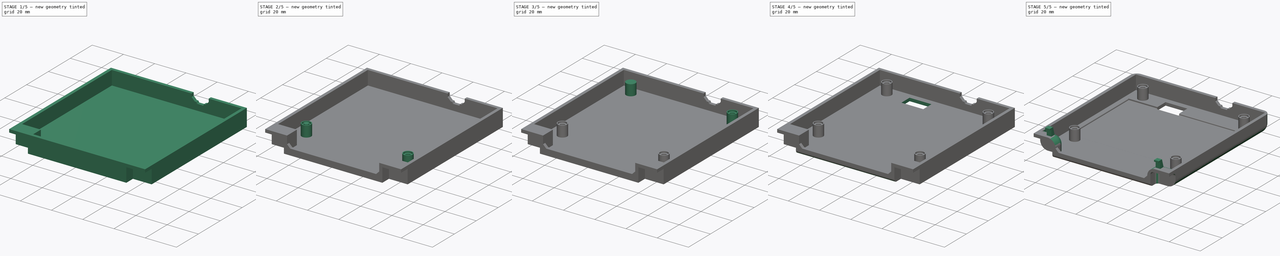
[diagram: build sequence overview — one tinted view per stage of 5, left to right]
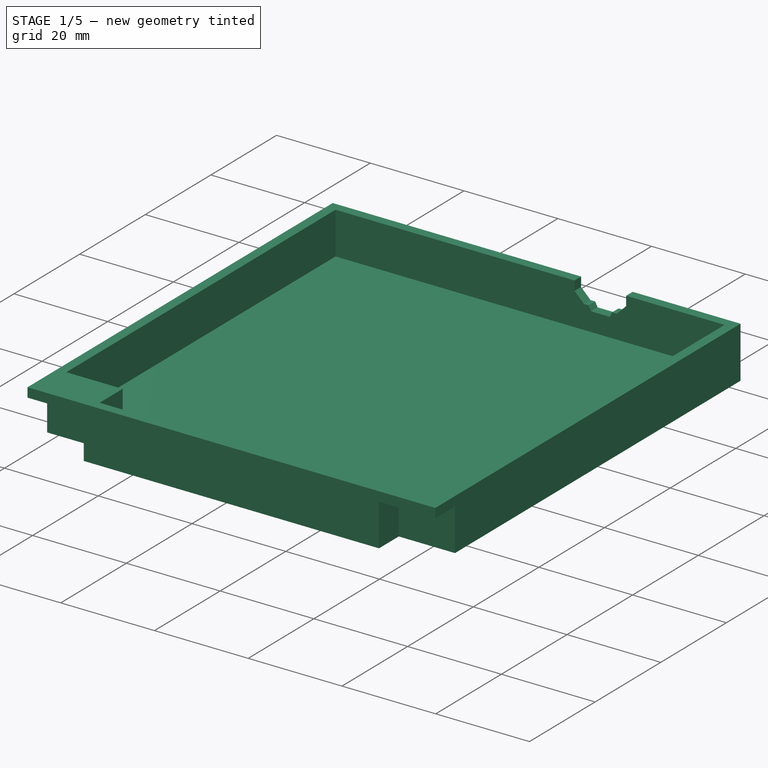
[diagram: stage 1 of 5 — iso view after this stage's code; geometry added in this stage tinted green]
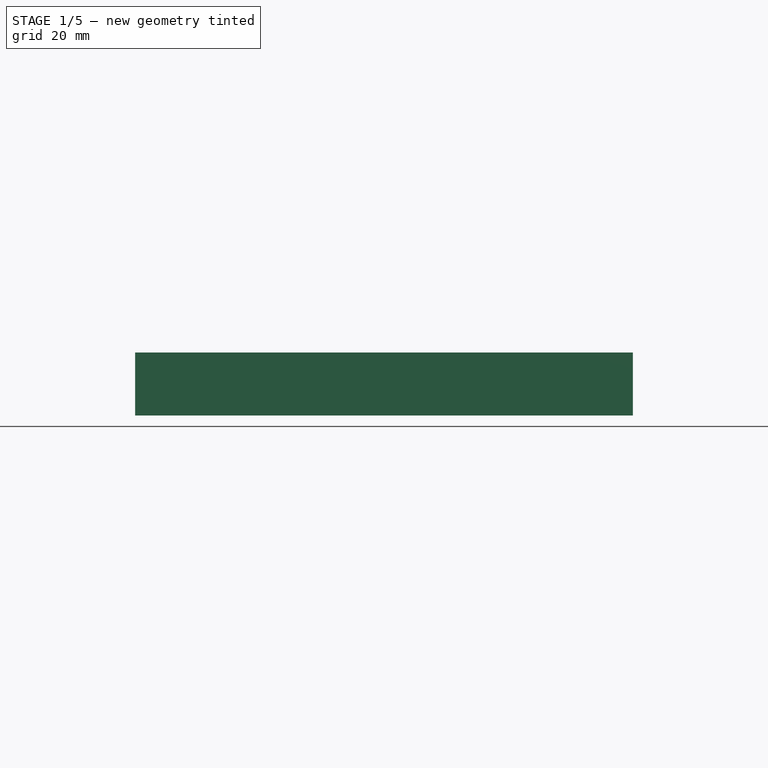
[diagram: stage 1 of 5 — front view after this stage's code; geometry added in this stage tinted green]
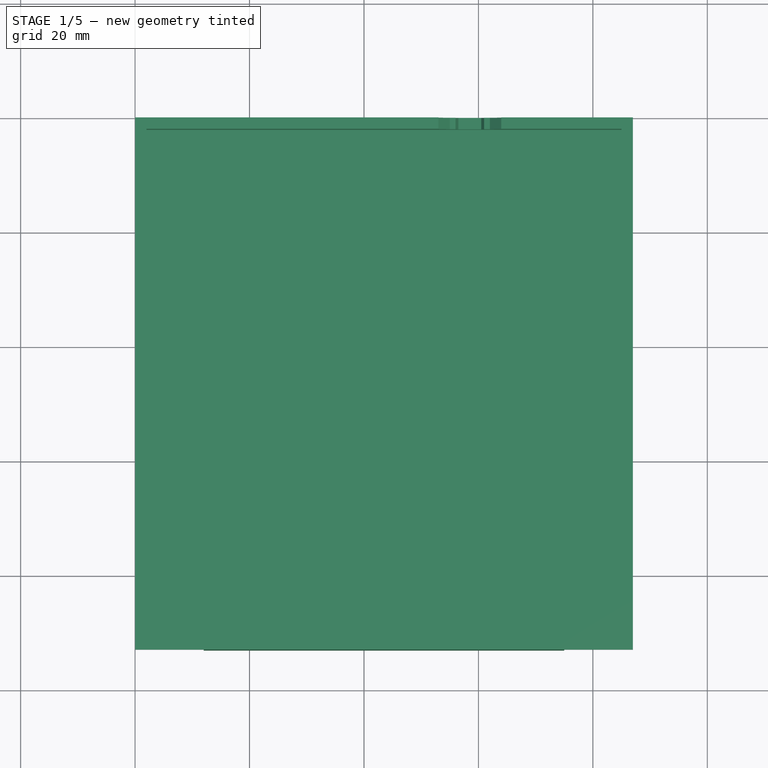
[diagram: stage 1 of 5 — top view after this stage's code; geometry added in this stage tinted green]
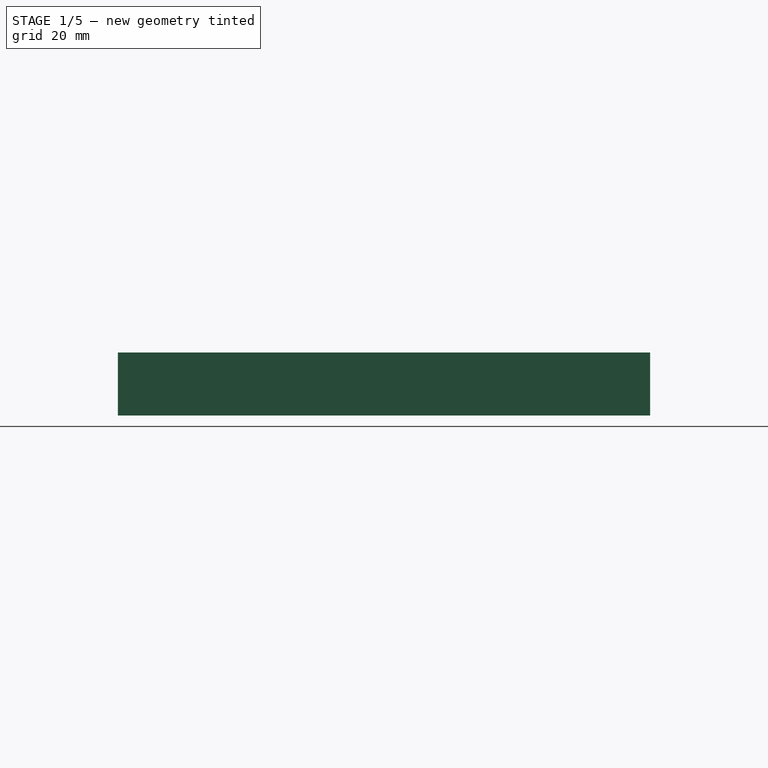
[diagram: stage 1 of 5 — right view after this stage's code; geometry added in this stage tinted green]
FCSTD DOCUMENT  (FreeCAD 0.21R33771 (Git))
Label: analoguepocket
License: All rights reserved
LicenseURL: http://en.wikipedia.org/wiki/All_rights_reserved
objects: Part::Feature×37, Part::Extrusion×31, Part::Cut×22, Part::Fillet×10, Sketcher::SketchObject×4, Part::MultiFuse×3, Part::Thickness×1
note: 108 computed .brp shape members not serialized (recipe doc carries the construction recipe); baked Part::Feature solids carry a one-line shape summary decoded from their .brp

FEATURE [Sketcher::SketchObject] Sketch
  FullyConstrained = false
  sketch-geometry (48):
    g0: LineSegment StartX=0 StartY=0 StartZ=0 EndX=87 EndY=0 EndZ=0
    g1: LineSegment StartX=87 StartY=0 StartZ=0 EndX=87 EndY=-93 EndZ=0
    g2: LineSegment StartX=87 StartY=-93 StartZ=0 EndX=0 EndY=-93 EndZ=0
    g3: LineSegment StartX=0 StartY=-93 StartZ=0 EndX=0 EndY=0 EndZ=0
    g4: Circle CenterX=11 CenterY=-8.5 CenterZ=0 NormalX=0 NormalY=0 NormalZ=1 AngleXU=0 Radius=1.5
    g5: Circle CenterX=11 CenterY=-8.5 CenterZ=0 NormalX=0 NormalY=0 NormalZ=1 AngleXU=0 Radius=2.5
    g6: Circle CenterX=11 CenterY=-8.5 CenterZ=0 NormalX=0 NormalY=0 NormalZ=1 AngleXU=0 Radius=3
    g7: LineSegment StartX=12 StartY=-93 StartZ=0 EndX=0 EndY=-93 EndZ=0
    g8: LineSegment StartX=0 StartY=-93 StartZ=0 EndX=0 EndY=-84 EndZ=0
    g9: LineSegment StartX=87 StartY=-93 StartZ=0 EndX=75 EndY=-93 EndZ=0
    g10: LineSegment StartX=87 StartY=-84 StartZ=0 EndX=87 EndY=-93 EndZ=0
    g11: Circle CenterX=76 CenterY=-71 CenterZ=0 NormalX=0 NormalY=0 NormalZ=1 AngleXU=0 Radius=1.5
    g12: Circle CenterX=76 CenterY=-71 CenterZ=0 NormalX=0 NormalY=0 NormalZ=1 AngleXU=0 Radius=2.5
    g13: Circle CenterX=76 CenterY=-71 CenterZ=0 NormalX=0 NormalY=0 NormalZ=1 AngleXU=0 Radius=3
    g14: Circle CenterX=76 CenterY=-8.5 CenterZ=0 NormalX=0 NormalY=0 NormalZ=1 AngleXU=0 Radius=1.5
    g15: Circle CenterX=76 CenterY=-8.5 CenterZ=0 NormalX=0 NormalY=0 NormalZ=1 AngleXU=0 Radius=2.5
    g16: Circle CenterX=76 CenterY=-8.5 CenterZ=0 NormalX=0 NormalY=0 NormalZ=1 AngleXU=0 Radius=3
    g17: Circle CenterX=11 CenterY=-71 CenterZ=0 NormalX=0 NormalY=0 NormalZ=1 AngleXU=0 Radius=1.5
    g18: Circle CenterX=11 CenterY=-71 CenterZ=0 NormalX=0 NormalY=0 NormalZ=1 AngleXU=0 Radius=2.5
    g19: Circle CenterX=11 CenterY=-71 CenterZ=0 NormalX=0 NormalY=0 NormalZ=1 AngleXU=0 Radius=3
    g20: LineSegment StartX=0 StartY=-93 StartZ=0 EndX=12 EndY=-93 EndZ=0
    g21: LineSegment StartX=12 StartY=-93 StartZ=0 EndX=12 EndY=-87 EndZ=0
    g22: LineSegment StartX=12 StartY=-87 StartZ=0 EndX=0 EndY=-87 EndZ=0
    g23: LineSegment StartX=0 StartY=-87 StartZ=0 EndX=0 EndY=-93 EndZ=0
    g24: LineSegment StartX=87 StartY=-93 StartZ=0 EndX=75 EndY=-93 EndZ=0
    g25: LineSegment StartX=75 StartY=-93 StartZ=0 EndX=75 EndY=-87 EndZ=0
    g26: LineSegment StartX=75 StartY=-87 StartZ=0 EndX=87 EndY=-87 EndZ=0
    g27: LineSegment StartX=87 StartY=-87 StartZ=0 EndX=87 EndY=-93 EndZ=0
    g28: LineSegment StartX=0 StartY=-84 StartZ=0 EndX=14 EndY=-84 EndZ=0
    g29: LineSegment StartX=14 StartY=-84 StartZ=0 EndX=14 EndY=-93 EndZ=0
    g30: LineSegment StartX=87 StartY=-84 StartZ=0 EndX=73 EndY=-84 EndZ=0
    g31: LineSegment StartX=73 StartY=-84 StartZ=0 EndX=73 EndY=-93 EndZ=0
    g32: LineSegment StartX=23.5 StartY=-13 StartZ=0 EndX=37.5 EndY=-13 EndZ=0
    g33: LineSegment StartX=37.5 StartY=-13 StartZ=0 EndX=37.5 EndY=-5 EndZ=0
    g34: LineSegment StartX=37.5 StartY=-5 StartZ=0 EndX=23.5 EndY=-5 EndZ=0
    g35: LineSegment StartX=23.5 StartY=-5 StartZ=0 EndX=23.5 EndY=-13 EndZ=0
    g36: LineSegment StartX=77 StartY=-88 StartZ=0 EndX=80 EndY=-88 EndZ=0
    g37: LineSegment StartX=80 StartY=-88 StartZ=0 EndX=80 EndY=-91 EndZ=0
    g38: LineSegment StartX=80 StartY=-91 StartZ=0 EndX=77 EndY=-91 EndZ=0
    g39: LineSegment StartX=77 StartY=-91 StartZ=0 EndX=77 EndY=-88 EndZ=0
    g40: LineSegment StartX=7 StartY=-88 StartZ=0 EndX=10 EndY=-88 EndZ=0
    g41: LineSegment StartX=10 StartY=-88 StartZ=0 EndX=10 EndY=-91 EndZ=0
    g42: LineSegment StartX=10 StartY=-91 StartZ=0 EndX=7 EndY=-91 EndZ=0
    g43: LineSegment StartX=7 StartY=-91 StartZ=0 EndX=7 EndY=-88 EndZ=0
    g44: LineSegment StartX=5 StartY=-13 StartZ=0 EndX=82 EndY=-13 EndZ=0
    g45: LineSegment StartX=82 StartY=-13 StartZ=0 EndX=82 EndY=-67 EndZ=0
    g46: LineSegment StartX=82 StartY=-67 StartZ=0 EndX=5 EndY=-67 EndZ=0
    g47: LineSegment StartX=5 StartY=-67 StartZ=0 EndX=5 EndY=-13 EndZ=0
  constraints (132):
    c: Coincident(g0,g1)
    c: Coincident(g1,g2)
    c: Coincident(g2,g3)
    c: Coincident(g3,g0)
    c: Horizontal(g0)
    c: Horizontal(g2)
    c: Vertical(g1)
    c: Vertical(g3)
    c: Coincident(g-1,g0)
    c: Distance(g0) = 87
    c: Distance(g3) = 93
    c: Diameter(g4) = 3
    c: Distance(g4,g0) = 8.5
    c: Distance(g4,g3) = 11
    c: Coincident(g5,g4)
    c: Diameter(g5) = 5
    c: Coincident(g6,g4)
    c: Diameter(g6) = 6
    c: Coincident(g7,g8)
    c: Horizontal(g7)
    c: Vertical(g8)
    c: PointOnObject(g8,g3)
    c: PointOnObject(g7,g2)
    c: Distance(g8) = 9
    c: Coincident(g10,g9)
    c: Horizontal(g9)
    c: Vertical(g10)
    c: Coincident(g9,g1)
    c: Diameter(g11) = 3
    c: Distance(g11,g1) = 11
    c: Distance(g11,g2) = 22
    c: Coincident(g12,g11)
    c: Diameter(g12) = 5
    c: Coincident(g13,g11)
    c: Diameter(g13) = 6
    c: Diameter(g14) = 3
    c: Distance(g14,g1) = 11
    c: Distance(g14,g0) = 8.5
    c: Coincident(g15,g14)
    c: Diameter(g15) = 5
    c: Coincident(g16,g14)
    c: Diameter(g16) = 6
    c: Diameter(g17) = 3
    c: Distance(g17,g3) = 11
    c: Distance(g17,g2) = 22
    c: Coincident(g18,g17)
    c: Diameter(g18) = 5
    c: Coincident(g19,g17)
    c: Diameter(g19) = 6
    c: Coincident(g20,g21)
    c: Coincident(g21,g22)
    c: Coincident(g22,g23)
    c: Coincident(g23,g20)
    c: Horizontal(g20)
    c: Horizontal(g22)
    c: Vertical(g21)
    c: Vertical(g23)
    c: Coincident(g20,g2)
    c: Distance(g23) = 6
    c: Coincident(g24,g25)
    c: Coincident(g25,g26)
    c: Coincident(g26,g27)
    c: Coincident(g27,g24)
    c: Horizontal(g24)
    c: Horizontal(g26)
    c: Vertical(g25)
    c: Vertical(g27)
    c: Coincident(g24,g1)
    c: Distance(g26) = 12
    c: Distance(g25) = 6
    c: Distance(g10,g1) = 9
    c: Coincident(g28,g8)
    c: Horizontal(g28)
    c: Distance(g28) = 14
    c: Distance(g21,g22) = 12
    c: Coincident(g29,g28)
    c: PointOnObject(g29,g2)
    c: Vertical(g29)
    c: Coincident(g30,g10)
    c: Horizontal(g30)
    c: Distance(g30) = 14
    c: Coincident(g31,g30)
    c: PointOnObject(g31,g2)
    c: Vertical(g31)
    c: Coincident(g32,g33)
    c: Coincident(g33,g34)
    c: Coincident(g34,g35)
    c: Coincident(g35,g32)
    c: Horizontal(g32)
    c: Horizontal(g34)
    c: Vertical(g33)
    c: Vertical(g35)
    c: Distance(g32) = 14
    c: Distance(g35) = 8
    c: Coincident(g36,g37)
    c: Coincident(g37,g38)
    c: Coincident(g38,g39)
    c: Coincident(g39,g36)
    c: Horizontal(g36)
    c: Horizontal(g38)
    c: Vertical(g37)
    c: Vertical(g39)
    c: Distance(g36) = 3
    c: Distance(g39) = 3
    c: Distance(g37,g2) = 2
    c: Distance(g36,g1) = 7
    c: Coincident(g40,g41)
    c: Coincident(g41,g42)
    c: Coincident(g42,g43)
    c: Coincident(g43,g40)
    c: Horizontal(g40)
    c: Horizontal(g42)
    c: Vertical(g41)
    c: Vertical(g43)
    c: Distance(g40) = 3
    c: Distance(g43) = 3
    c: Distance(g42,g2) = 2
    c: Distance(g42,g3) = 7
    c: Distance(g32,g3) = 23.5
    c: Distance(g34,g2) = 88
    c: Coincident(g44,g45)
    c: Coincident(g45,g46)
    c: Coincident(g46,g47)
    c: Coincident(g47,g44)
    c: Horizontal(g44)
    c: Horizontal(g46)
    c: Vertical(g45)
    c: Vertical(g47)
    c: Distance(g45) = 54
    c: Distance(g44,g0) = 13
    c: Distance(g44,g3) = 5
    c: Distance(g44,g1) = 5
FEATURE [Sketcher::SketchObject] Sketch001
  FullyConstrained = true
  Placement = pos=(0,-93,0) rot=(1,0,0;1.5708rad)
  sketch-geometry (10):
    g0: LineSegment StartX=73 StartY=11 StartZ=0 EndX=14 EndY=11 EndZ=0
    g1: LineSegment StartX=87 StartY=11 StartZ=0 EndX=0 EndY=11 EndZ=0
    g2: LineSegment StartX=0 StartY=11 StartZ=0 EndX=0 EndY=0 EndZ=0
    g3: LineSegment StartX=0 StartY=0 StartZ=0 EndX=87 EndY=0 EndZ=0
    g4: LineSegment StartX=87 StartY=0 StartZ=0 EndX=87 EndY=11 EndZ=0
    g5: LineSegment StartX=16 StartY=3.99996 StartZ=0 EndX=14 EndY=5.99996 EndZ=0
    g6: LineSegment StartX=73 StartY=5.99996 StartZ=0 EndX=71 EndY=3.99996 EndZ=0
    g7: LineSegment StartX=14 StartY=5.99996 StartZ=0 EndX=14 EndY=11 EndZ=0
    g8: LineSegment StartX=16 StartY=3.99996 StartZ=0 EndX=71 EndY=3.99996 EndZ=0
    g9: LineSegment StartX=73 StartY=5.99996 StartZ=0 EndX=73 EndY=11 EndZ=0
  constraints (29):
    c: Horizontal(g0)
    c: Distance(g0) = 59
    c: Coincident(g1,g2)
    c: Coincident(g2,g3)
    c: Coincident(g3,g4)
    c: Coincident(g4,g1)
    c: Horizontal(g1)
    c: Horizontal(g3)
    c: Vertical(g2)
    c: Vertical(g4)
    c: Coincident(g2,g-1)
    c: Distance(g2) = 11
    c: Distance(g1) = 87
    c: Distance(g0,g1) = 14
    c: Distance(g0,g1) = 14
    c: Coincident(g7,g5)
    c: Coincident(g7,g0)
    c: Vertical(g7)
    c: Coincident(g8,g5)
    c: Coincident(g8,g6)
    c: Horizontal(g8)
    c: Coincident(g9,g6)
    c: Coincident(g9,g0)
    c: Vertical(g9)
    c: Angle(g5,g7) = 2.35619
    c: Distance(g5,g0) = 5
    c: Distance(g5,g0) = 7
    c: Distance(g6,g0) = 5
    c: Angle(g6) = -2.35619
FEATURE [Sketcher::SketchObject] Sketch002
  FullyConstrained = true
  Placement = pos=(0,0,0) rot=(1,0,0;1.5708rad)
  sketch-geometry (12):
    g0: LineSegment StartX=53 StartY=11 StartZ=0 EndX=64 EndY=11 EndZ=0
    g1: LineSegment StartX=0 StartY=0 StartZ=0 EndX=87 EndY=0 EndZ=0
    g2: LineSegment StartX=87 StartY=0 StartZ=0 EndX=87 EndY=11 EndZ=0
    g3: LineSegment StartX=64 StartY=11 StartZ=0 EndX=64 EndY=9 EndZ=0
    g4: LineSegment StartX=53 StartY=11 StartZ=0 EndX=53 EndY=9 EndZ=0
    g5: LineSegment StartX=55 StartY=7 StartZ=0 EndX=56 EndY=7 EndZ=0
    g6: LineSegment StartX=62 StartY=7 StartZ=0 EndX=61 EndY=7 EndZ=0
    g7: LineSegment StartX=56.5 StartY=6 StartZ=0 EndX=60.5 EndY=6 EndZ=0
    g8: LineSegment StartX=62 StartY=7 StartZ=0 EndX=64 EndY=9 EndZ=0
    g9: LineSegment StartX=60.5 StartY=6 StartZ=0 EndX=61 EndY=7 EndZ=0
    g10: LineSegment StartX=56.5 StartY=6 StartZ=0 EndX=56 EndY=7 EndZ=0
    g11: LineSegment StartX=55 StartY=7 StartZ=0 EndX=53 EndY=9 EndZ=0
  constraints (36):
    c: Coincident(g1,g-1)
    c: PointOnObject(g1,g-1)
    c: Coincident(g2,g1)
    c: Vertical(g2)
    c: Distance(g0) = 11
    c: Distance(g0,g2) = 23
    c: Distance(g0,g1) = 11
    c: Distance(g0,g1) = 11
    c: Distance(g1) = 87
    c: Coincident(g3,g0)
    c: Vertical(g3)
    c: Coincident(g4,g0)
    c: Vertical(g4)
    c: Distance(g4) = 2
    c: Distance(g3) = 2
    c: Horizontal(g5)
    c: Distance(g5) = 1
    c: Distance(g5,g0) = 4
    c: Horizontal(g6)
    c: Distance(g6) = 1
    c: Distance(g6,g0) = 4
    c: Horizontal(g7)
    c: Distance(g7) = 4
    c: Distance(g7,g1) = 6
    c: Distance(g2) = 11
    c: Coincident(g8,g6)
    c: Coincident(g8,g3)
    c: Coincident(g9,g7)
    c: Coincident(g9,g6)
    c: Coincident(g10,g7)
    c: Coincident(g10,g5)
    c: Coincident(g11,g5)
    c: Coincident(g11,g4)
    c: Distance(g7,g2) = 26.5
    c: Distance(g6,g2) = 25
    c: DistanceX(g-2,g5) = 55
FEATURE [Part::Feature] Face002
  shape: bbox 12.1 x 2e-07 x 5.5 mm, 1 faces, 0 solids (baked)
FEATURE [Part::Extrusion] Extrude002
  Base = -> Face002
  Dir = (0,-1,0)
  DirMode = 0
  FaceMakerClass = Part::FaceMakerBullseye
  LengthFwd = 2
  LengthRev = 0
  Solid = false
  Symmetric = false
FEATURE [Sketcher::SketchObject] Sketch003
  FullyConstrained = true
  MapMode = 4
  Placement = pos=(0,0,0) rot=(0.57735,0.57735,0.57735;2.0944rad)
  sketch-geometry (8):
    g0: LineSegment StartX=0 StartY=0 StartZ=0 EndX=0 EndY=11 EndZ=0
    g1: LineSegment StartX=0 StartY=0 StartZ=0 EndX=-93 EndY=0 EndZ=0
    g2: LineSegment StartX=-91 StartY=11 StartZ=0 EndX=-88 EndY=11 EndZ=0
    g3: LineSegment StartX=-91 StartY=11 StartZ=0 EndX=-91 EndY=15 EndZ=0
    g4: LineSegment StartX=-91 StartY=15 StartZ=0 EndX=-92.5 EndY=15 EndZ=0
    g5: LineSegment StartX=-92.5 StartY=15 StartZ=0 EndX=-92.5 EndY=16 EndZ=0
    g6: LineSegment StartX=-92.5 StartY=16 StartZ=0 EndX=-89.5 EndY=16 EndZ=0
    g7: LineSegment StartX=-89.5 StartY=16 StartZ=0 EndX=-88 EndY=11 EndZ=0
  constraints (24):
    c: Coincident(g0,g-1)
    c: PointOnObject(g0,g-2)
    c: Distance(g0) = 11
    c: Coincident(g1,g0)
    c: PointOnObject(g1,g-1)
    c: Distance(g1) = 93
    c: Horizontal(g2)
    c: Distance(g2,g1) = 11
    c: DistanceX(g-2,g2) = -88
    c: DistanceX(g-2,g2) = -91
    c: Coincident(g3,g2)
    c: Vertical(g3)
    c: Distance(g3) = 4
    c: Coincident(g4,g3)
    c: Horizontal(g4)
    c: Distance(g4) = 1.5
    c: Coincident(g5,g4)
    c: Vertical(g5)
    c: Distance(g5) = 1
    c: Coincident(g6,g5)
    c: Horizontal(g6)
    c: Distance(g6) = 3
    c: Coincident(g7,g6)
    c: Coincident(g7,g2)
FEATURE [Part::Feature] Face
  shape: bbox 95.7 x 102.3 x 2e-07 mm, 1 faces, 0 solids (baked)
FEATURE [Part::Extrusion] Extrude
  Base = -> Face
  Dir = (0,0,1)
  DirMode = 0
  FaceMakerClass = Part::FaceMakerBullseye
  LengthFwd = 11
  LengthRev = 0
  Solid = false
  Symmetric = false
FEATURE [Part::Thickness] Thickness
  Faces = -> Extrude [Face6]
  Intersection = false
  Join = 0
  Mode = 0
  SelfIntersection = false
  Value = -2
FEATURE [Part::Feature] Face053
  shape: bbox 15.4 x 9.9 x 2e-07 mm, 1 faces, 0 solids (baked)
FEATURE [Part::Feature] Face054
  shape: bbox 15.4 x 9.9 x 2e-07 mm, 1 faces, 0 solids (baked)
FEATURE [Part::Extrusion] Extrude056
  Base = -> Face053
  Dir = (0,0,1)
  DirMode = 0
  FaceMakerClass = Part::FaceMakerBullseye
  LengthFwd = 11
  LengthRev = 0
  Solid = false
  Symmetric = false
FEATURE [Part::Extrusion] Extrude057
  Base = -> Face054
  Dir = (0,0,1)
  DirMode = 0
  FaceMakerClass = Part::FaceMakerBullseye
  LengthFwd = 11
  LengthRev = 0
  Solid = false
  Symmetric = false
FEATURE [Part::MultiFuse] Fusion
  Shapes = -> [Thickness,Extrude056,Extrude057]
FEATURE [Part::Feature] Face055
  shape: bbox 13.2 x 6.6 x 2e-07 mm, 1 faces, 0 solids (baked)
FEATURE [Part::Feature] Face056
  shape: bbox 13.2 x 6.6 x 2e-07 mm, 1 faces, 0 solids (baked)
FEATURE [Part::Extrusion] Extrude058
  Base = -> Face055
  Dir = (0,0,1)
  DirMode = 0
  FaceMakerClass = Part::FaceMakerBullseye
  LengthFwd = 9
  LengthRev = 0
  Solid = false
  Symmetric = false
FEATURE [Part::Extrusion] Extrude059
  Base = -> Face056
  Dir = (0,0,1)
  DirMode = 0
  FaceMakerClass = Part::FaceMakerBullseye
  LengthFwd = 9
  LengthRev = 0
  Solid = false
  Symmetric = false
FEATURE [Part::Cut] Cut
  Base = -> Fusion
  Tool = -> Extrude058
FEATURE [Part::Cut] Cut038
  Base = -> Cut
  Tool = -> Extrude059
FEATURE [Part::Cut] Cut039
  Base = -> Cut038
  Tool = -> Extrude002
FEATURE [Part::Feature] Face057
  shape: bbox 64.9 x 2e-07 x 7.7 mm, 1 faces, 0 solids (baked)
FEATURE [Part::Extrusion] Extrude060
  Base = -> Face057
  Dir = (0,1,0)
  DirMode = 0
  FaceMakerClass = Part::FaceMakerBullseye
  LengthFwd = 2
  LengthRev = 0
  Solid = false
  Symmetric = false
FEATURE [Part::Feature] Face060
  Placement = pos=(0,0,1) rot=(0,0,1;0rad)
  shape: bbox 84.7 x 59.4 x 2e-07 mm, 1 faces, 0 solids (baked)
FEATURE [Part::Extrusion] Extrude063
  Base = -> Face060
  Dir = (0,0,1)
  DirMode = 0
  FaceMakerClass = Part::FaceMakerBullseye
  LengthFwd = 1
  LengthRev = 0
  Solid = false
  Symmetric = false
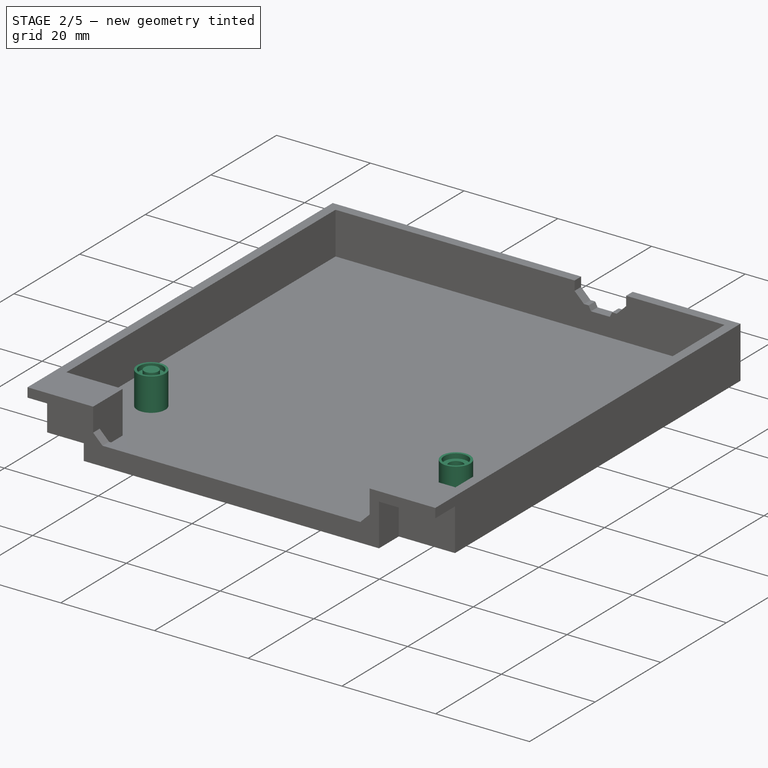
[diagram: stage 2 of 5 — iso view after this stage's code; geometry added in this stage tinted green]
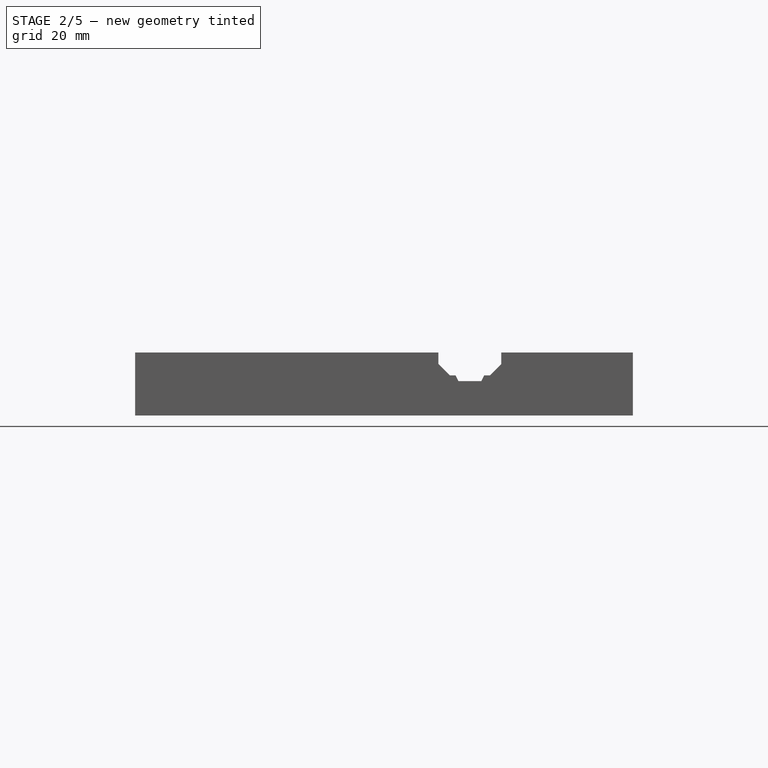
[diagram: stage 2 of 5 — front view after this stage's code; geometry added in this stage tinted green]
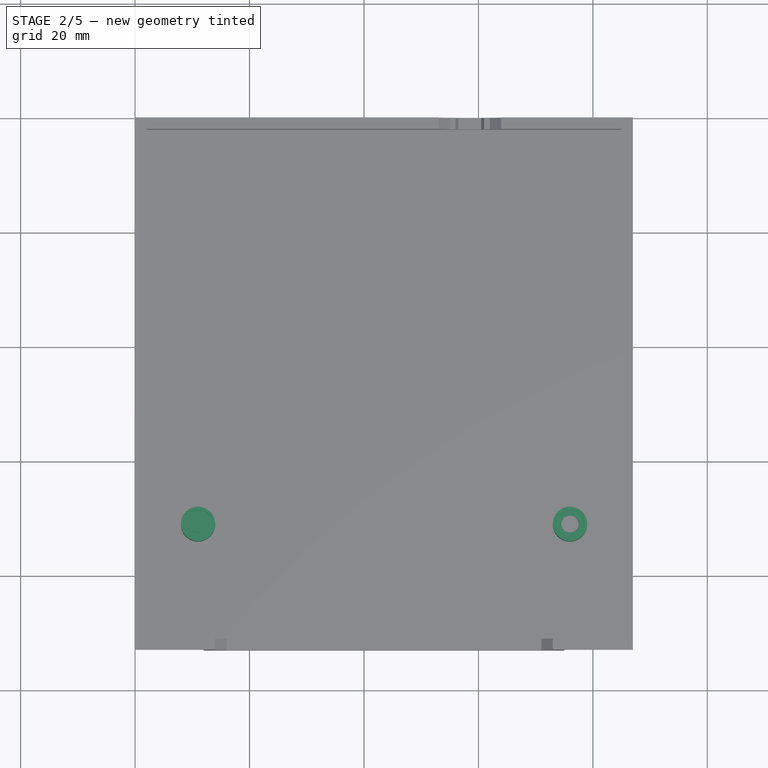
[diagram: stage 2 of 5 — top view after this stage's code; geometry added in this stage tinted green]
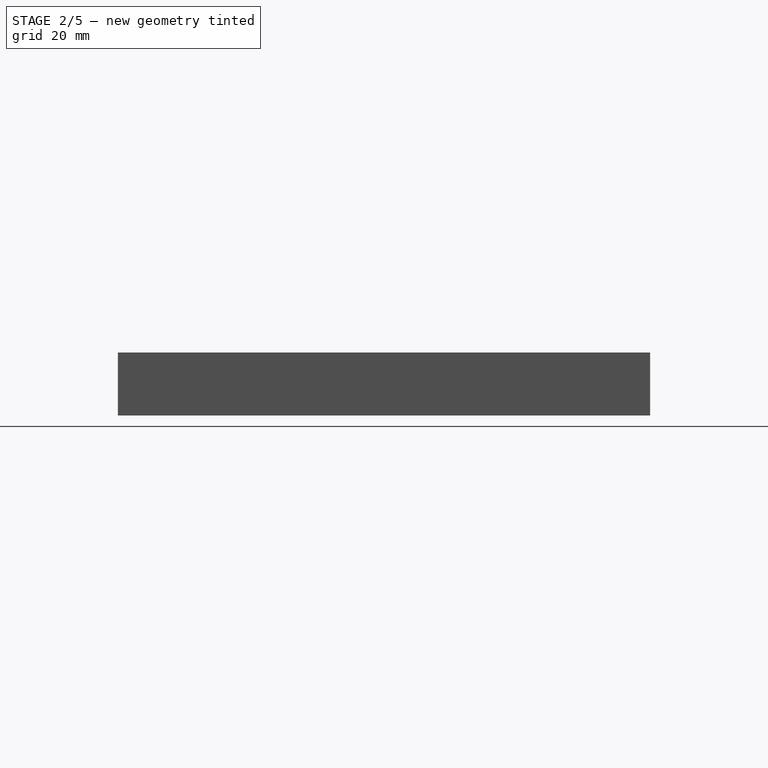
[diagram: stage 2 of 5 — right view after this stage's code; geometry added in this stage tinted green]
FEATURE [Part::Extrusion] Extrude040
  Base = -> Face037
  Dir = (0,0,1)
  DirMode = 0
  FaceMakerClass = Part::FaceMakerBullseye
  LengthFwd = 9
  LengthRev = 0
  Solid = false
  Symmetric = false
FEATURE [Part::Extrusion] Extrude041
  Base = -> Face038
  Dir = (0,0,1)
  DirMode = 0
  FaceMakerClass = Part::FaceMakerBullseye
  LengthFwd = 9
  LengthRev = 0
  Solid = false
  Symmetric = false
FEATURE [Part::Extrusion] Extrude044
  Base = -> Face039
  Dir = (0,0,1)
  DirMode = 0
  FaceMakerClass = Part::FaceMakerBullseye
  LengthFwd = 6.5
  LengthRev = 0
  Solid = false
  Symmetric = false
FEATURE [Part::Extrusion] Extrude045
  Base = -> Face040
  Dir = (0,0,1)
  DirMode = 0
  FaceMakerClass = Part::FaceMakerBullseye
  LengthFwd = 6.5
  LengthRev = 0
  Solid = false
  Symmetric = false
FEATURE [Part::Cut] Cut028
  Base = -> Extrude040
  Tool = -> Extrude044
FEATURE [Part::Cut] Cut029
  Base = -> Extrude041
  Tool = -> Extrude045
FEATURE [Part::Feature] Face041
  Placement = pos=(0,0,8) rot=(0,0,1;0rad)
  shape: bbox 6.379 x 6.28 x 2e-07 mm, 1 faces, 0 solids (baked)
FEATURE [Part::Feature] Face042
  Placement = pos=(0,0,8) rot=(0,0,1;0rad)
  shape: bbox 5.878 x 5.584 x 2e-07 mm, 1 faces, 0 solids (baked)
FEATURE [Part::Feature] Face043
  Placement = pos=(0,0,8) rot=(0,0,1;0rad)
  shape: bbox 6.926 x 6.921 x 2e-07 mm, 1 faces, 0 solids (baked)
FEATURE [Part::Feature] Face044
  Placement = pos=(0,0,8) rot=(0,0,1;0rad)
  shape: bbox 6.466 x 6.4 x 2e-07 mm, 1 faces, 0 solids (baked)
FEATURE [Part::Extrusion] Extrude046
  Base = -> Face041
  Dir = (0,0,1)
  DirMode = 0
  FaceMakerClass = Part::FaceMakerBullseye
  LengthFwd = 1
  LengthRev = 0
  Solid = false
  Symmetric = false
FEATURE [Part::Extrusion] Extrude047
  Base = -> Face042
  Dir = (0,0,1)
  DirMode = 0
  FaceMakerClass = Part::FaceMakerBullseye
  LengthFwd = 1
  LengthRev = 0
  Solid = false
  Symmetric = false
FEATURE [Part::Cut] Cut032
  Base = -> Cut028
  Tool = -> Extrude046
FEATURE [Part::Cut] Cut033
  Base = -> Cut029
  Tool = -> Extrude047
FEATURE [Part::Feature] Face045
  shape: bbox 3.498 x 3.302 x 2e-07 mm, 1 faces, 0 solids (baked)
FEATURE [Part::Feature] Face046
  shape: bbox 3.471 x 3.252 x 2e-07 mm, 1 faces, 0 solids (baked)
FEATURE [Part::Feature] Face047
  shape: bbox 4.657 x 4.659 x 2e-07 mm, 1 faces, 0 solids (baked)
FEATURE [Part::Feature] Face048
  shape: bbox 3.897 x 3.856 x 2e-07 mm, 1 faces, 0 solids (baked)
FEATURE [Part::Extrusion] Extrude050
  Base = -> Face045
  Dir = (0,0,1)
  DirMode = 0
  FaceMakerClass = Part::FaceMakerBullseye
  LengthFwd = 9
  LengthRev = 0
  Solid = false
  Symmetric = false
FEATURE [Part::Extrusion] Extrude051
  Base = -> Face046
  Dir = (0,0,1)
  DirMode = 0
  FaceMakerClass = Part::FaceMakerBullseye
  LengthFwd = 9
  LengthRev = 0
  Solid = false
  Symmetric = false
FEATURE [Part::Cut] Cut037
  Base = -> Cut033
  Tool = -> Extrude051
FEATURE [Part::Cut] Cut040
  Base = -> Cut039
  Tool = -> Extrude060
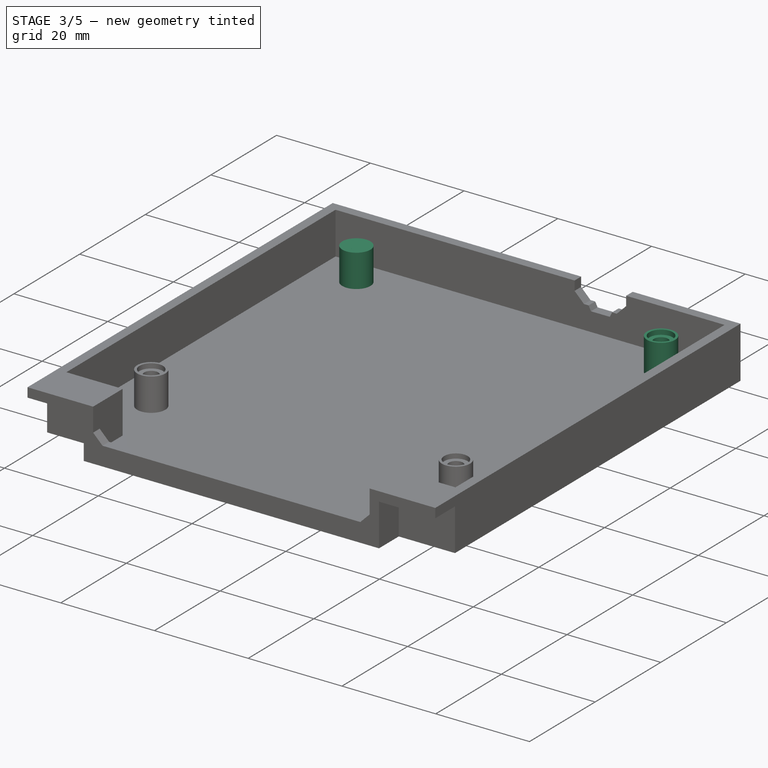
[diagram: stage 3 of 5 — iso view after this stage's code; geometry added in this stage tinted green]
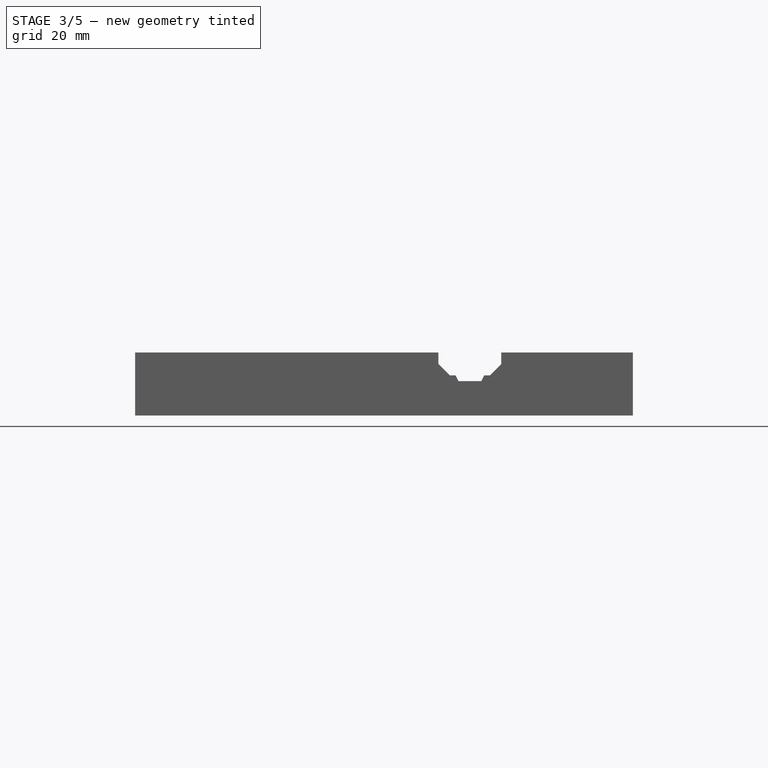
[diagram: stage 3 of 5 — front view after this stage's code; geometry added in this stage tinted green]
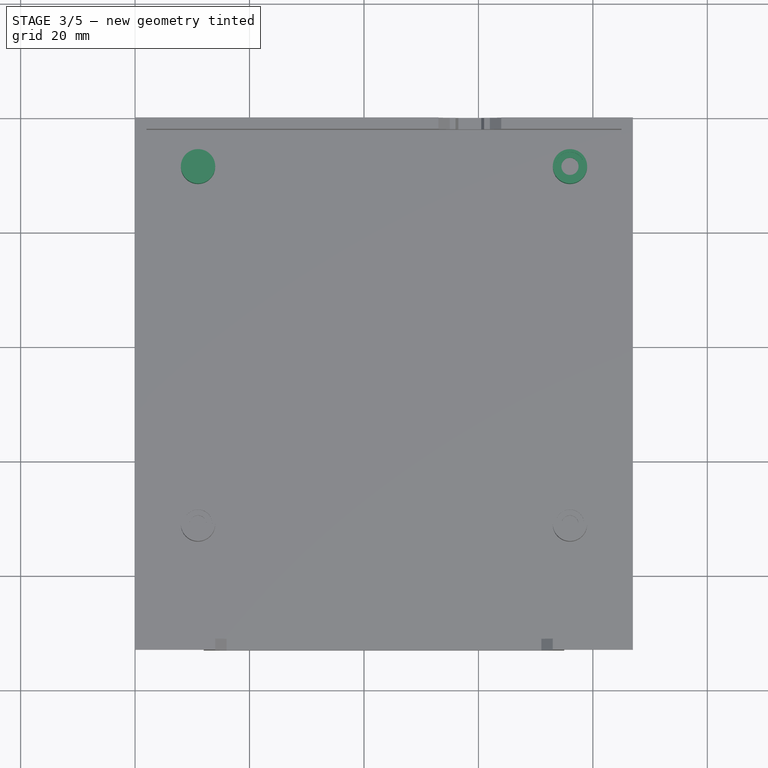
[diagram: stage 3 of 5 — top view after this stage's code; geometry added in this stage tinted green]
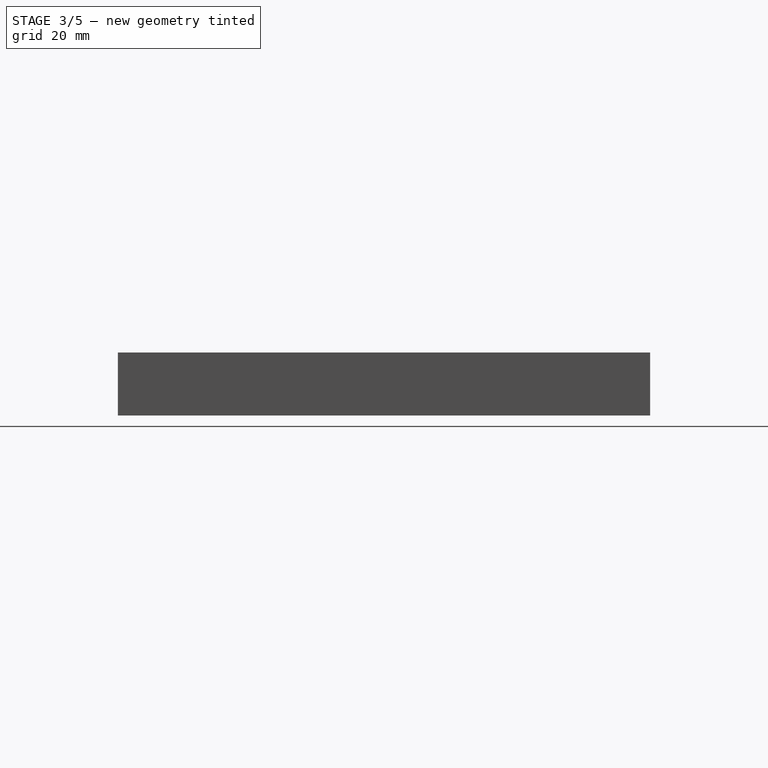
[diagram: stage 3 of 5 — right view after this stage's code; geometry added in this stage tinted green]
FEATURE [Part::Feature] Face037
  shape: bbox 8.834 x 8.842 x 2e-07 mm, 1 faces, 0 solids (baked)
FEATURE [Part::Feature] Face038
  shape: bbox 7.336 x 7.08 x 2e-07 mm, 1 faces, 0 solids (baked)
FEATURE [Part::Extrusion] Extrude038
  Base = -> Face005
  Dir = (0,0,1)
  DirMode = 0
  FaceMakerClass = Part::FaceMakerBullseye
  LengthFwd = 9
  LengthRev = 0
  Solid = false
  Symmetric = false
FEATURE [Part::Extrusion] Extrude039
  Base = -> Face006
  Dir = (0,0,1)
  DirMode = 0
  FaceMakerClass = Part::FaceMakerBullseye
  LengthFwd = 9
  LengthRev = 0
  Solid = false
  Symmetric = false
FEATURE [Part::Feature] Face039
  shape: bbox 6.379 x 6.28 x 2e-07 mm, 1 faces, 0 solids (baked)
FEATURE [Part::Feature] Face040
  shape: bbox 5.878 x 5.584 x 2e-07 mm, 1 faces, 0 solids (baked)
FEATURE [Part::Extrusion] Extrude042
  Base = -> Face009
  Dir = (0,0,1)
  DirMode = 0
  FaceMakerClass = Part::FaceMakerBullseye
  LengthFwd = 6.5
  LengthRev = 0
  Solid = false
  Symmetric = false
FEATURE [Part::Extrusion] Extrude043
  Base = -> Face010
  Dir = (0,0,1)
  DirMode = 0
  FaceMakerClass = Part::FaceMakerBullseye
  LengthFwd = 6.5
  LengthRev = 0
  Solid = false
  Symmetric = false
FEATURE [Part::Cut] Cut026
  Base = -> Extrude038
  Tool = -> Extrude042
FEATURE [Part::Cut] Cut027
  Base = -> Extrude039
  Tool = -> Extrude043
FEATURE [Part::Extrusion] Extrude048
  Base = -> Face043
  Dir = (0,0,1)
  DirMode = 0
  FaceMakerClass = Part::FaceMakerBullseye
  LengthFwd = 1
  LengthRev = 0
  Solid = false
  Symmetric = false
FEATURE [Part::Extrusion] Extrude049
  Base = -> Face044
  Dir = (0,0,1)
  DirMode = 0
  FaceMakerClass = Part::FaceMakerBullseye
  LengthFwd = 1
  LengthRev = 0
  Solid = false
  Symmetric = false
FEATURE [Part::Cut] Cut031
  Base = -> Cut027
  Tool = -> Extrude049
FEATURE [Part::Extrusion] Extrude052
  Base = -> Face047
  Dir = (0,0,1)
  DirMode = 0
  FaceMakerClass = Part::FaceMakerBullseye
  LengthFwd = 9
  LengthRev = 0
  Solid = false
  Symmetric = false
FEATURE [Part::Extrusion] Extrude053
  Base = -> Face048
  Dir = (0,0,1)
  DirMode = 0
  FaceMakerClass = Part::FaceMakerBullseye
  LengthFwd = 9
  LengthRev = 0
  Solid = false
  Symmetric = false
FEATURE [Part::Cut] Cut035
  Base = -> Cut031
  Tool = -> Extrude053
FEATURE [Part::Cut] Cut036
  Base = -> Cut032
  Tool = -> Extrude050
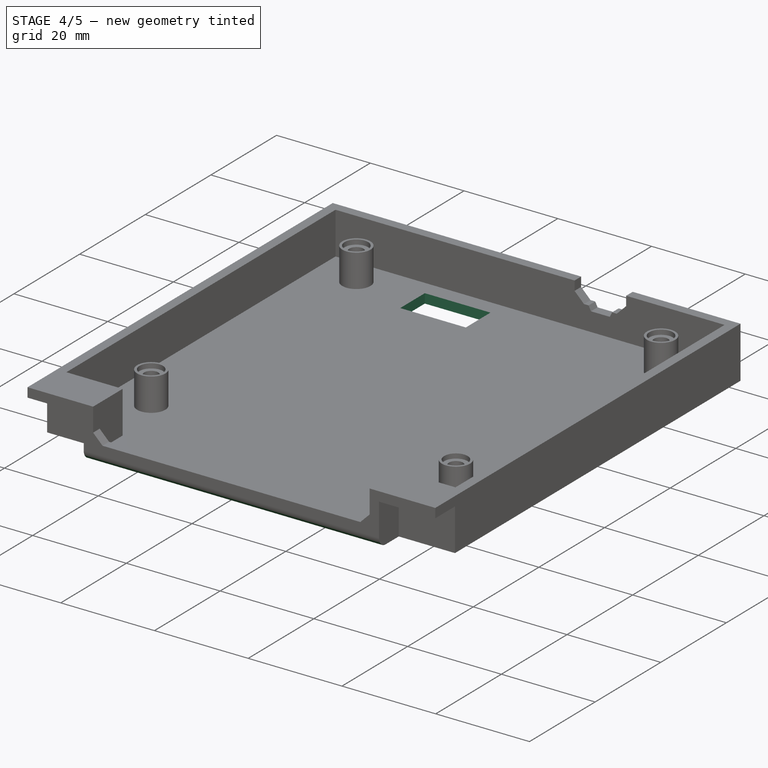
[diagram: stage 4 of 5 — iso view after this stage's code; geometry added in this stage tinted green]
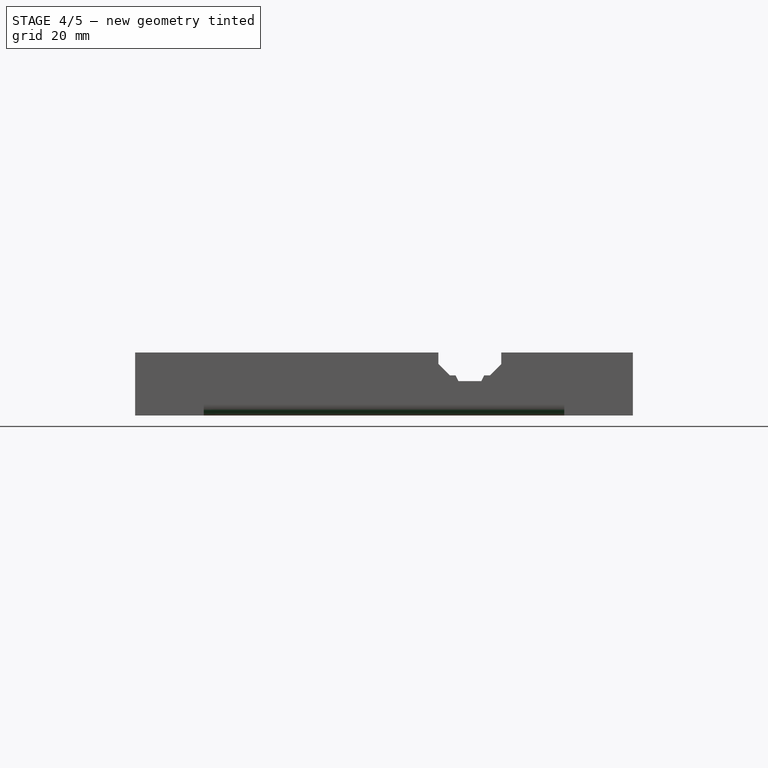
[diagram: stage 4 of 5 — front view after this stage's code; geometry added in this stage tinted green]
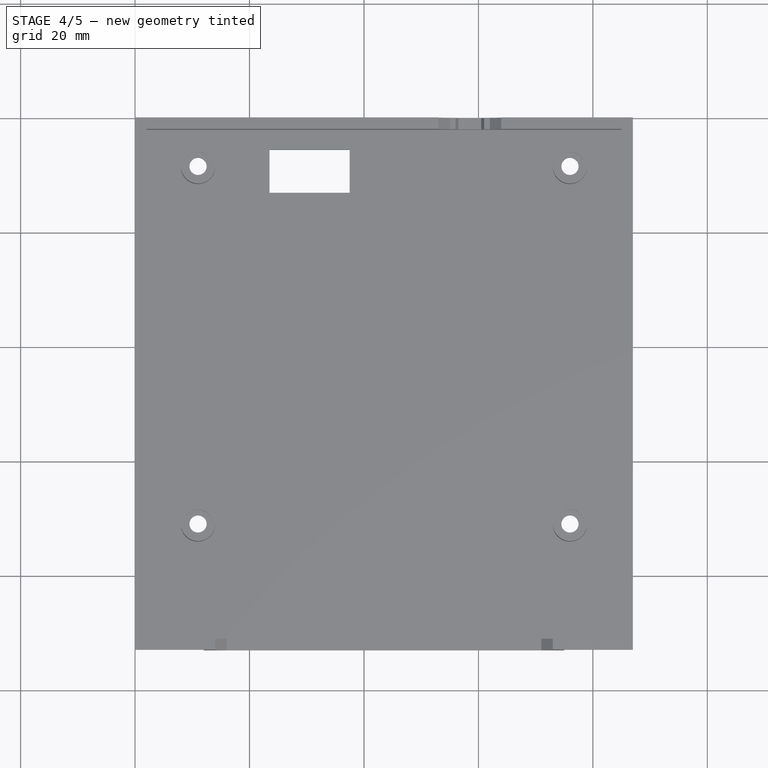
[diagram: stage 4 of 5 — top view after this stage's code; geometry added in this stage tinted green]
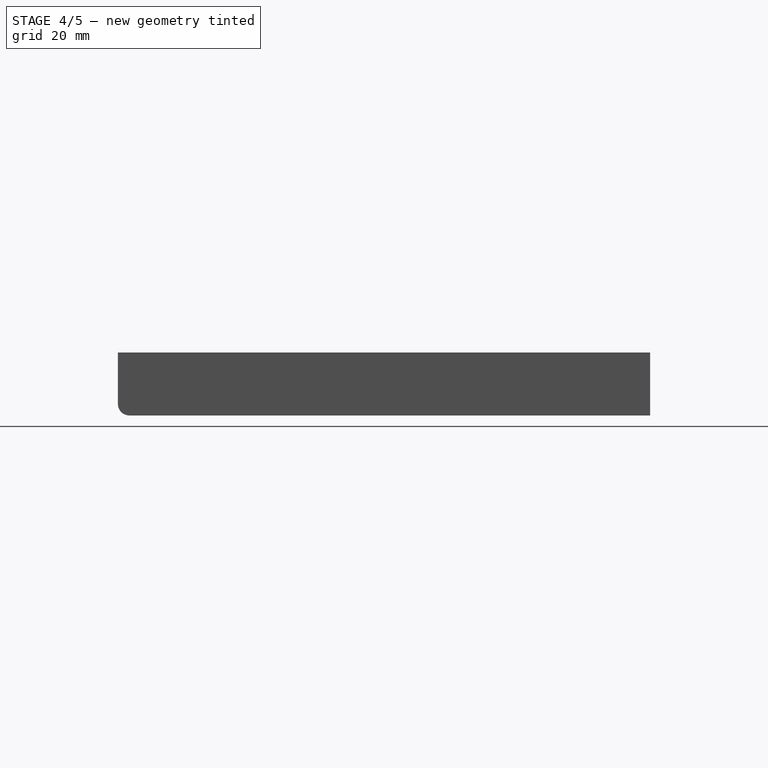
[diagram: stage 4 of 5 — right view after this stage's code; geometry added in this stage tinted green]
FEATURE [Part::Feature] Face005
  shape: bbox 8.739 x 8.735 x 2e-07 mm, 1 faces, 0 solids (baked)
FEATURE [Part::Feature] Face006
  shape: bbox 8.375 x 8.371 x 2e-07 mm, 1 faces, 0 solids (baked)
FEATURE [Part::Feature] Face009
  shape: bbox 6.926 x 6.921 x 2e-07 mm, 1 faces, 0 solids (baked)
FEATURE [Part::Feature] Face010
  shape: bbox 6.466 x 6.4 x 2e-07 mm, 1 faces, 0 solids (baked)
FEATURE [Part::Feature] Face019
  shape: bbox 6.926 x 6.921 x 2e-07 mm, 1 faces, 0 solids (baked)
FEATURE [Part::Feature] Face020
  shape: bbox 6.466 x 6.4 x 2e-07 mm, 1 faces, 0 solids (baked)
FEATURE [Part::Extrusion] Extrude019
  Base = -> Face019
  Dir = (0,0,1)
  DirMode = 0
  FaceMakerClass = Part::FaceMakerBullseye
  LengthFwd = 2
  LengthRev = 0
  Solid = false
  Symmetric = false
FEATURE [Part::Extrusion] Extrude020
  Base = -> Face020
  Dir = (0,0,1)
  DirMode = 0
  FaceMakerClass = Part::FaceMakerBullseye
  LengthFwd = 2
  LengthRev = 0
  Solid = false
  Symmetric = false
FEATURE [Part::Feature] Face029
  Placement = pos=(7,0,0) rot=(0,0,1;0rad)
  shape: bbox 2e-07 x 7.459 x 8.443 mm, 1 faces, 0 solids (baked)
FEATURE [Part::Feature] Face030
  Placement = pos=(77,0,0) rot=(0,0,1;0rad)
  shape: bbox 2e-07 x 7.459 x 8.443 mm, 1 faces, 0 solids (baked)
FEATURE [Part::Feature] Face031
  shape: bbox 4.657 x 4.659 x 2e-07 mm, 1 faces, 0 solids (baked)
FEATURE [Part::Feature] Face034
  shape: bbox 3.897 x 3.856 x 2e-07 mm, 1 faces, 0 solids (baked)
FEATURE [Part::Feature] Face036
  Placement = pos=(0,8,0) rot=(0,0,1;0rad)
  shape: bbox 15.4 x 8.8 x 2e-07 mm, 1 faces, 0 solids (baked)
FEATURE [Part::Extrusion] Extrude037
  Base = -> Face036
  Dir = (0,0,1)
  DirMode = 0
  FaceMakerClass = Part::FaceMakerBullseye
  LengthFwd = 2
  LengthRev = 0
  Solid = false
  Symmetric = false
FEATURE [Part::Cut] Cut030
  Base = -> Cut026
  Tool = -> Extrude048
FEATURE [Part::Cut] Cut034
  Base = -> Cut030
  Tool = -> Extrude052
FEATURE [Part::Feature] Face049
  shape: bbox 6.379 x 6.28 x 2e-07 mm, 1 faces, 0 solids (baked)
FEATURE [Part::Feature] Face050
  shape: bbox 5.878 x 5.584 x 2e-07 mm, 1 faces, 0 solids (baked)
FEATURE [Part::Feature] Face051
  shape: bbox 6.926 x 6.921 x 2e-07 mm, 1 faces, 0 solids (baked)
FEATURE [Part::Feature] Face052
  shape: bbox 6.466 x 6.4 x 2e-07 mm, 1 faces, 0 solids (baked)
FEATURE [Part::Extrusion] Extrude054
  Base = -> Face049
  Dir = (0,0,1)
  DirMode = 0
  FaceMakerClass = Part::FaceMakerBullseye
  LengthFwd = 2
  LengthRev = 0
  Solid = false
  Symmetric = false
FEATURE [Part::Extrusion] Extrude055
  Base = -> Face050
  Dir = (0,0,1)
  DirMode = 0
  FaceMakerClass = Part::FaceMakerBullseye
  LengthFwd = 2
  LengthRev = 0
  Solid = false
  Symmetric = false
FEATURE [Part::MultiFuse] Fusion001
  Shapes = -> [Cut040,Cut037,Cut036,Cut035,Cut034]
FEATURE [Part::Cut] Cut041
  Base = -> Fusion001
  Tool = -> Extrude055
FEATURE [Part::Cut] Cut042
  Base = -> Cut041
  Tool = -> Extrude054
FEATURE [Part::Cut] Cut043
  Base = -> Cut042
  Tool = -> Extrude020
FEATURE [Part::Cut] Cut044
  Base = -> Cut043
  Tool = -> Extrude019
FEATURE [Part::Cut] Cut045
  Base = -> Cut044
  Tool = -> Extrude037
FEATURE [Part::Fillet] Fillet
  Base = -> Cut045
  Edges = 3 edges r=2: [Edge11,Edge28,Edge68]
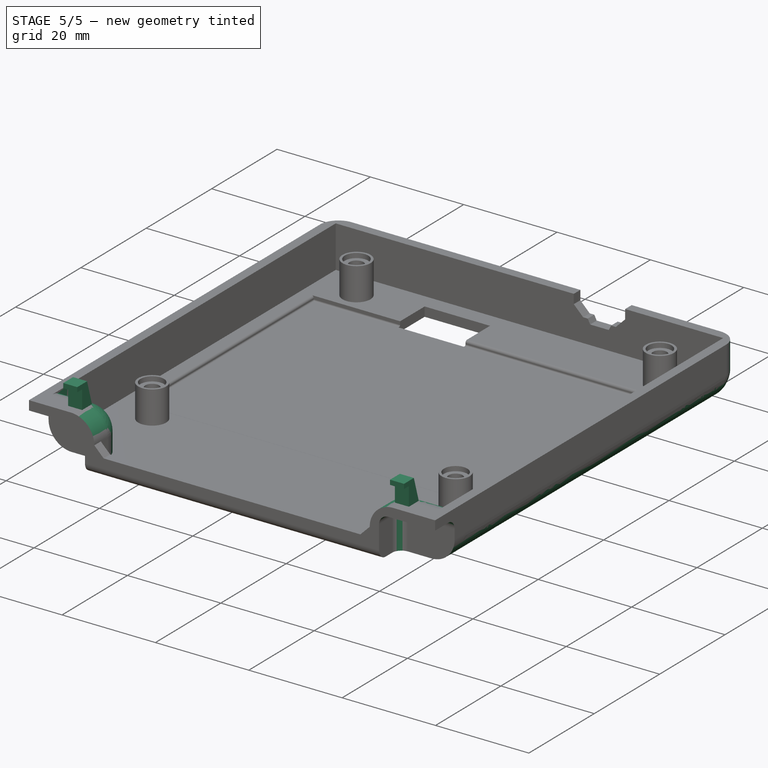
[diagram: stage 5 of 5 — iso view after this stage's code; geometry added in this stage tinted green]
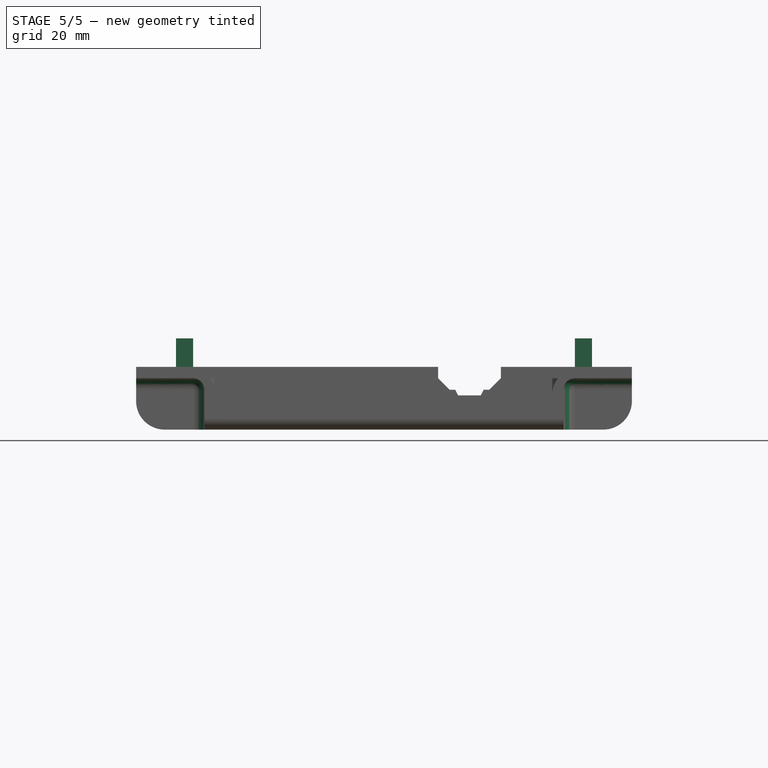
[diagram: stage 5 of 5 — front view after this stage's code; geometry added in this stage tinted green]
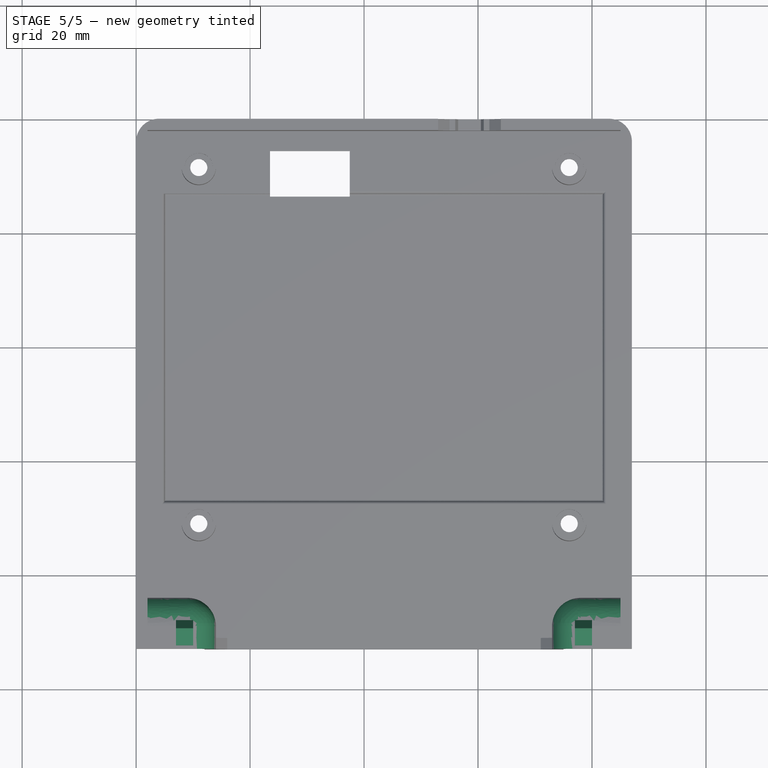
[diagram: stage 5 of 5 — top view after this stage's code; geometry added in this stage tinted green]
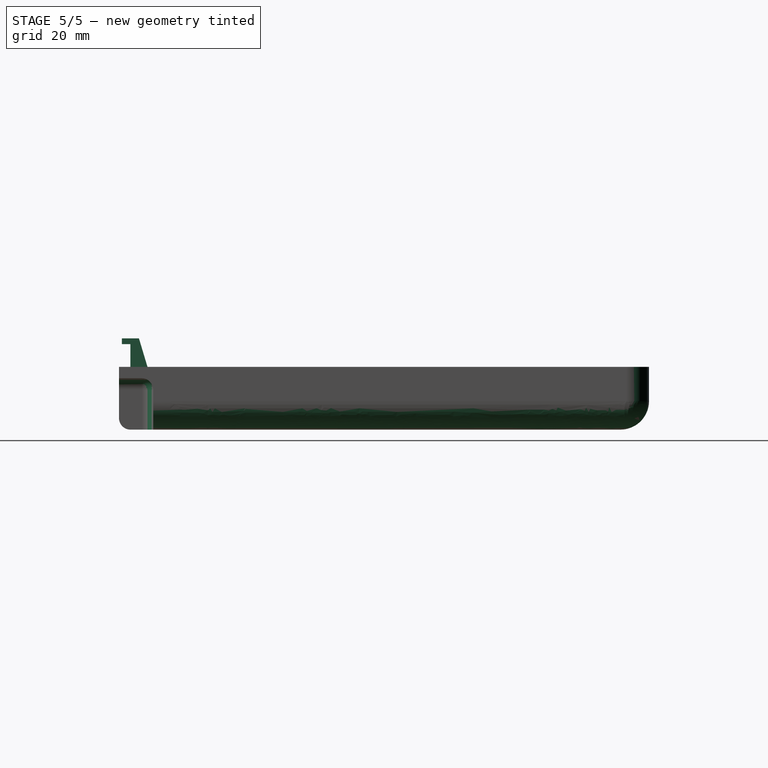
[diagram: stage 5 of 5 — right view after this stage's code; geometry added in this stage tinted green]
FEATURE [Part::Feature] Face058
  Placement = pos=(7,0,0) rot=(0,0,1;0rad)
  shape: bbox 2e-07 x 7.459 x 8.443 mm, 1 faces, 0 solids (baked)
FEATURE [Part::Extrusion] Extrude061
  Base = -> Face058
  Dir = (1,0,0)
  DirMode = 0
  FaceMakerClass = Part::FaceMakerBullseye
  LengthFwd = 3
  LengthRev = 0
  Solid = false
  Symmetric = false
FEATURE [Part::Feature] Face059
  Placement = pos=(77,0,0) rot=(0,0,1;0rad)
  shape: bbox 2e-07 x 7.459 x 8.443 mm, 1 faces, 0 solids (baked)
FEATURE [Part::Extrusion] Extrude062
  Base = -> Face059
  Dir = (1,0,0)
  DirMode = 0
  FaceMakerClass = Part::FaceMakerBullseye
  LengthFwd = 3
  LengthRev = 0
  Solid = false
  Symmetric = false
FEATURE [Part::Fillet] Fillet001
  Base = -> Fillet
  Edges = 5 edges r=5: [Edge5,Edge7,Edge8,Edge9,Edge37]
FEATURE [Part::Fillet] Fillet002
  Base = -> Fillet001
  Edges = 1 edges r=2: [Edge15]
FEATURE [Part::Fillet] Fillet003
  Base = -> Fillet002
  Edges = 1 edges r=2: [Edge146]
FEATURE [Part::Fillet] Fillet004
  Base = -> Fillet003
  Edges = 2 edges r=5: [Edge61,Edge155]
FEATURE [Part::Fillet] Fillet005
  Base = -> Fillet004
  Edges = 4 edges r=5: [Edge37,Edge44,Edge163,Edge164]
FEATURE [Part::Fillet] Fillet006
  Base = -> Fillet005
  Edges = 4 edges r=4: [Edge72,Edge74,Edge148,Edge150]
FEATURE [Part::Fillet] Fillet007
  Base = -> Fillet006
  Edges = 2 edges r=2: [Edge124,Edge215]
FEATURE [Part::Cut] Cut046
  Base = -> Fillet007
  Tool = -> Extrude063
FEATURE [Part::Fillet] Fillet008
  Base = -> Cut046
  Edges = 4 edges r=0.5: [Edge130,Edge131,Edge132,Edge133]
FEATURE [Part::Fillet] Fillet009
  Base = -> Fillet008
  Edges = 5 edges r=0.3: [Edge44,Edge96,Edge111,Edge112,Edge113]
FEATURE [Part::MultiFuse] Fusion002
  Shapes = -> [Extrude061,Extrude062,Fillet009]
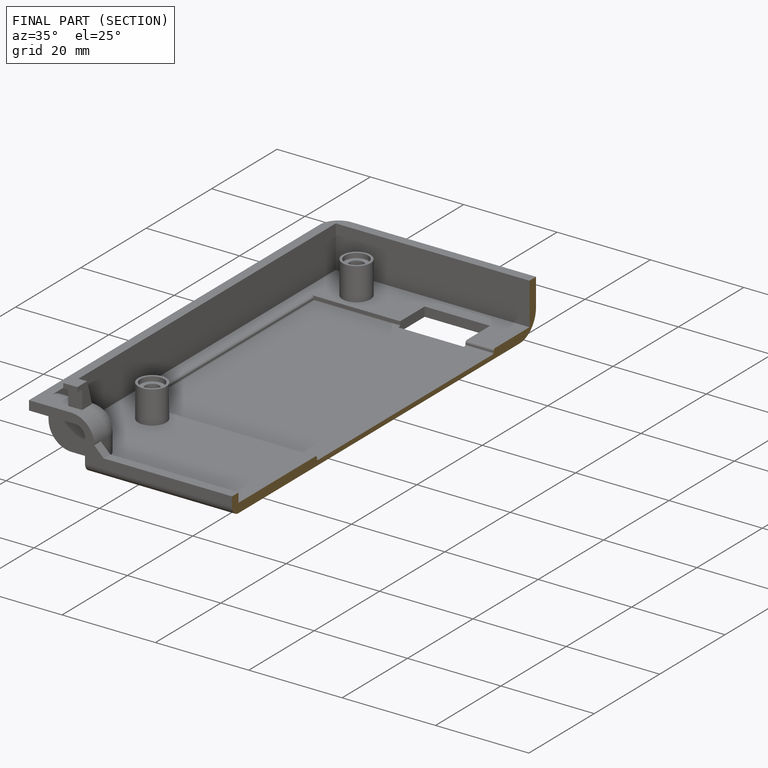
[diagram: finished part — half-section view (interior)]
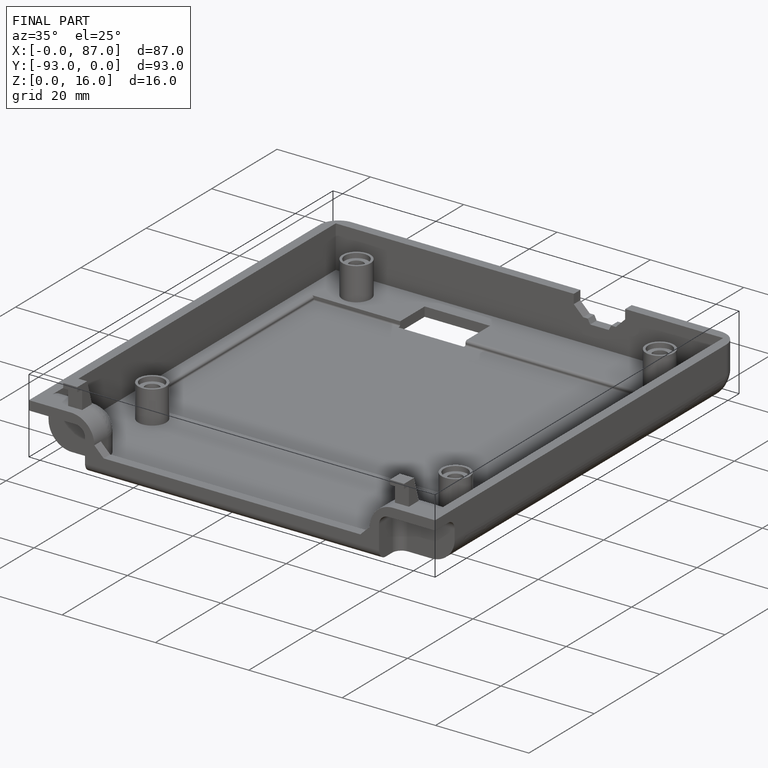
[diagram: finished part — iso view with bounding-box wireframe]
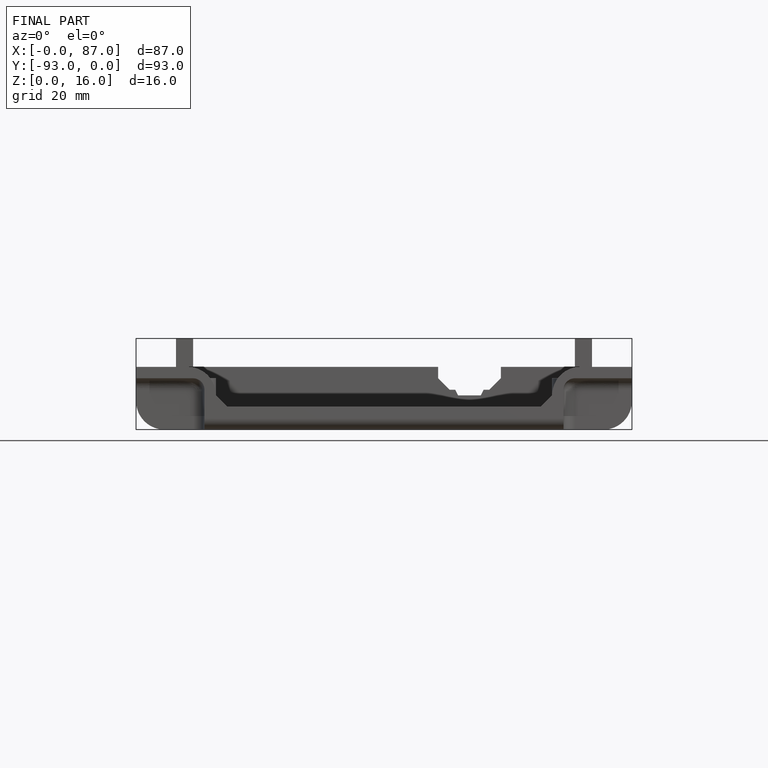
[diagram: finished part — front view with bounding-box wireframe]
